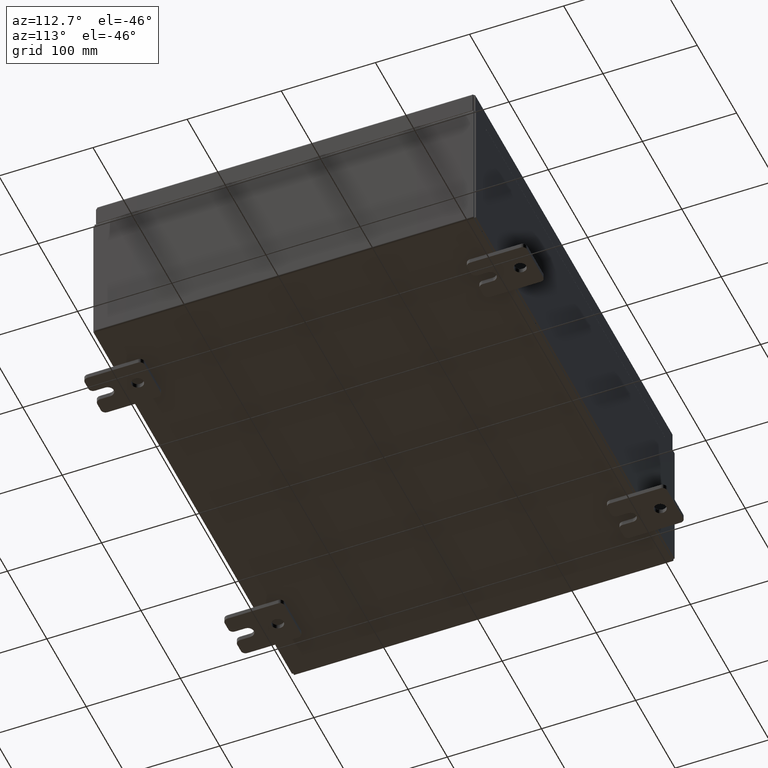
[diagram: clean part render]
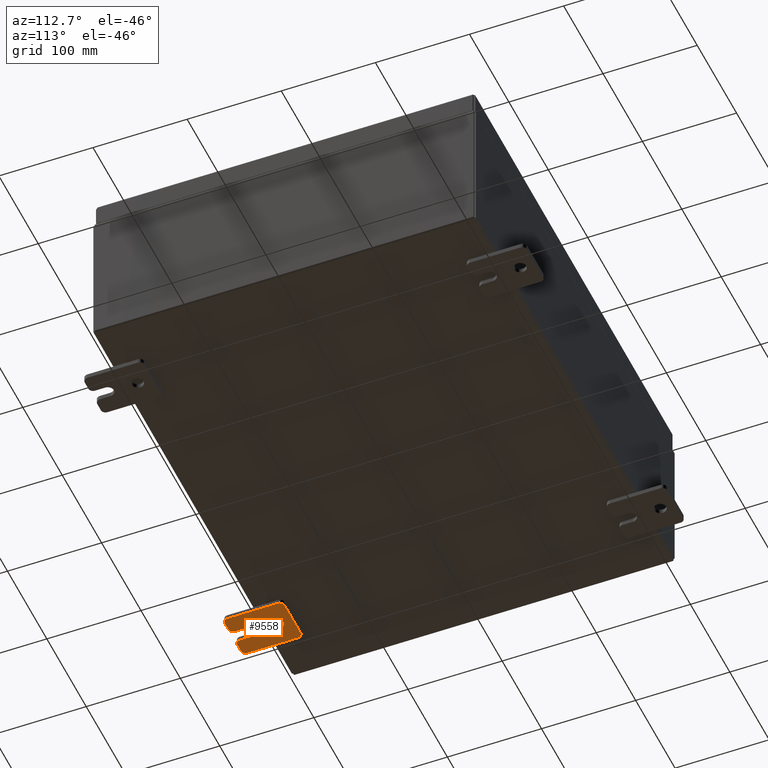
[diagram: same view with one face highlighted and labeled with its STEP entity id]
A machine part, auxiliary view. The second image highlights one B-rep face of the part: STEP entity #9558.
In plain terms, the highlighted planar face has unit normal (0, 0, 1).
Its self-contained STEP definition (entity closure, byte-faithful):
#383 = CARTESIAN_POINT ( 'NONE',  ( -0.1879999999999997800, 1.249999999999994200, -1.000000000000010400 ) ) ;
#495 = LINE ( 'NONE', #383, #38833 ) ;
#1017 = ORIENTED_EDGE ( 'NONE', *, *, #56891, .F. ) ;
#1212 = VECTOR ( 'NONE', #31915, 39.37007874015748100 ) ;
#1824 = VERTEX_POINT ( 'NONE', #32795 ) ;
#3380 = CARTESIAN_POINT ( 'NONE',  ( -0.1879999999999997800, -1.060000000000004100, -0.8100000000000050500 ) ) ;
#4101 = AXIS2_PLACEMENT_3D ( 'NONE', #3380, #37017, #8249 ) ;
#4194 = ORIENTED_EDGE ( 'NONE', *, *, #25151, .T. ) ;
#4737 = DIRECTION ( 'NONE',  ( 0.0000000000000000000, 0.0000000000000000000, -1.000000000000000000 ) ) ;
#5092 = AXIS2_PLACEMENT_3D ( 'NONE', #50521, #21791, #55314 ) ;
#6177 = VECTOR ( 'NONE', #54468, 39.37007874015748100 ) ;
#6838 = EDGE_CURVE ( 'NONE', #24683, #30950, #33500, .T. ) ;
#6852 = ORIENTED_EDGE ( 'NONE', *, *, #52141, .T. ) ;
#6981 = CARTESIAN_POINT ( 'NONE',  ( -0.1880000000000001900, -0.6249999999999992200, 0.2500000000000005000 ) ) ;
#7111 = VERTEX_POINT ( 'NONE', #16588 ) ;
#7534 = AXIS2_PLACEMENT_3D ( 'NONE', #14972, #48552, #19818 ) ;
#7574 = VERTEX_POINT ( 'NONE', #14259 ) ;
#7723 = LINE ( 'NONE', #40044, #6177 ) ;
#8228 = DIRECTION ( 'NONE',  ( 0.0000000000000000000, -1.639108796198553600E-015, -1.000000000000000000 ) ) ;
#8249 = DIRECTION ( 'NONE',  ( 0.0000000000000000000, 0.0000000000000000000, -1.000000000000000000 ) ) ;
#8513 = DIRECTION ( 'NONE',  ( 1.000000000000000000, -0.0000000000000000000, -5.163192708025532000E-017 ) ) ;
#9558 = ADVANCED_FACE ( 'NONE', ( #15307, #28106 ), #11556, .F. ) ;
#9586 = LINE ( 'NONE', #13995, #59104 ) ;
#9642 = DIRECTION ( 'NONE',  ( -1.000000000000000000, -0.0000000000000000000, 0.0000000000000000000 ) ) ;
#11164 = LINE ( 'NONE', #33448, #23952 ) ;
#11556 = PLANE ( 'NONE',  #57475 ) ;
#13289 = CARTESIAN_POINT ( 'NONE',  ( -0.1879999999999997800, -1.250000000000005300, -0.8100000000000047200 ) ) ;
#13995 = CARTESIAN_POINT ( 'NONE',  ( -0.1879999999999997800, 1.249999999999997600, 0.9999999999999951200 ) ) ;
#14040 = LINE ( 'NONE', #36703, #1212 ) ;
#14259 = CARTESIAN_POINT ( 'NONE',  ( -0.1880000000000010000, 0.6249999999999992200, -0.2499999999999999200 ) ) ;
#14972 = CARTESIAN_POINT ( 'NONE',  ( -0.1879999999999997800, -1.060000000000001600, 0.8099999999999978300 ) ) ;
#15307 = FACE_BOUND ( 'NONE', #42639, .T. ) ;
#15894 = EDGE_CURVE ( 'NONE', #53098, #7574, #18994, .T. ) ;
#15992 = DIRECTION ( 'NONE',  ( 1.000000000000000000, -0.0000000000000000000, -5.163192708025532000E-017 ) ) ;
#16304 = DIRECTION ( 'NONE',  ( -1.000000000000000000, -0.0000000000000000000, 0.0000000000000000000 ) ) ;
#16436 = CIRCLE ( 'NONE', #57487, 0.2499999999999999200 ) ;
#16577 = ORIENTED_EDGE ( 'NONE', *, *, #15894, .T. ) ;
#16588 = CARTESIAN_POINT ( 'NONE',  ( -0.1880000000000004700, -1.060000000000003400, -0.2499999999999994400 ) ) ;
#16824 = ORIENTED_EDGE ( 'NONE', *, *, #24410, .F. ) ;
#16864 = DIRECTION ( 'NONE',  ( -1.000000000000000000, 6.523827964459549700E-016, 5.163192708025532000E-017 ) ) ;
#17518 = CIRCLE ( 'NONE', #5092, 0.1900000000000011400 ) ;
#18864 = DIRECTION ( 'NONE',  ( 0.0000000000000000000, -1.000000000000000000, 1.639108796198558100E-015 ) ) ;
#18994 = CIRCLE ( 'NONE', #56493, 0.2499999999999999200 ) ;
#19818 = DIRECTION ( 'NONE',  ( 0.0000000000000000000, 7.189073667537492800E-016, -1.000000000000000000 ) ) ;
#21283 = CARTESIAN_POINT ( 'NONE',  ( -0.1880000000000004700, -1.060000000000002100, 0.2500000000000005000 ) ) ;
#21667 = ORIENTED_EDGE ( 'NONE', *, *, #52623, .F. ) ;
#21791 = DIRECTION ( 'NONE',  ( -1.000000000000000000, -0.0000000000000000000, 0.0000000000000000000 ) ) ;
#23411 = CARTESIAN_POINT ( 'NONE',  ( -0.1879999999999997800, -1.250000000000002400, 0.8099999999999980500 ) ) ;
#23952 = VECTOR ( 'NONE', #47727, 39.37007874015748100 ) ;
#23960 = EDGE_CURVE ( 'NONE', #24683, #38802, #495, .T. ) ;
#24410 = EDGE_CURVE ( 'NONE', #27537, #7111, #14040, .T. ) ;
#24683 = VERTEX_POINT ( 'NONE', #58214 ) ;
#24734 = AXIS2_PLACEMENT_3D ( 'NONE', #62202, #33544, #4737 ) ;
#25151 = EDGE_CURVE ( 'NONE', #7574, #53098, #48538, .T. ) ;
#25371 = VECTOR ( 'NONE', #42098, 39.37007874015748100 ) ;
#26059 = DIRECTION ( 'NONE',  ( -0.0000000000000000000, 0.0000000000000000000, -1.000000000000000000 ) ) ;
#27251 = ORIENTED_EDGE ( 'NONE', *, *, #23960, .F. ) ;
#27501 = ORIENTED_EDGE ( 'NONE', *, *, #57254, .F. ) ;
#27537 = VERTEX_POINT ( 'NONE', #44746 ) ;
#27921 = VERTEX_POINT ( 'NONE', #21283 ) ;
#28106 = FACE_OUTER_BOUND ( 'NONE', #37539, .T. ) ;
#28518 = VERTEX_POINT ( 'NONE', #34432 ) ;
#30950 = VERTEX_POINT ( 'NONE', #46992 ) ;
#31915 = DIRECTION ( 'NONE',  ( -6.556435184794182400E-016, -1.000000000000000000, -1.639108796198545600E-016 ) ) ;
#32493 = VECTOR ( 'NONE', #8228, 39.37007874015748100 ) ;
#32795 = CARTESIAN_POINT ( 'NONE',  ( -0.1879999999999997800, -1.250000000000003100, 0.4400000000000020000 ) ) ;
#33448 = CARTESIAN_POINT ( 'NONE',  ( -0.1879999999999997800, -1.250000000000005600, -1.000000000000006200 ) ) ;
#33500 = CIRCLE ( 'NONE', #56574, 0.1900000000000011100 ) ;
#33544 = DIRECTION ( 'NONE',  ( -1.000000000000000000, -0.0000000000000000000, 0.0000000000000000000 ) ) ;
#34002 = EDGE_CURVE ( 'NONE', #60967, #7111, #48411, .T. ) ;
#34272 = VERTEX_POINT ( 'NONE', #13289 ) ;
#34432 = CARTESIAN_POINT ( 'NONE',  ( -0.1879999999999997800, -1.060000000000001200, 0.9999999999999988900 ) ) ;
#36089 = ORIENTED_EDGE ( 'NONE', *, *, #6838, .T. ) ;
#36703 = CARTESIAN_POINT ( 'NONE',  ( -0.1880000000000001900, -0.6249999999999992200, -0.2499999999999993900 ) ) ;
#36996 = CARTESIAN_POINT ( 'NONE',  ( -0.1879999999999997800, -1.250000000000002200, 0.9999999999999992200 ) ) ;
#37017 = DIRECTION ( 'NONE',  ( -1.000000000000000000, -0.0000000000000000000, 0.0000000000000000000 ) ) ;
#37261 = CARTESIAN_POINT ( 'NONE',  ( -0.1880000000000010000, 0.6249999999999992200, -7.703811342100550500E-020 ) ) ;
#37453 = ORIENTED_EDGE ( 'NONE', *, *, #49973, .T. ) ;
#37539 = EDGE_LOOP ( 'NONE', ( #45149, #6852, #61114, #56536, #27251, #36089, #1017, #37453, #21667, #40310, #16824, #27501, #54045, #55567 ) ) ;
#37553 = VERTEX_POINT ( 'NONE', #56523 ) ;
#37596 = CIRCLE ( 'NONE', #53475, 0.1900000000000011100 ) ;
#38063 = EDGE_CURVE ( 'NONE', #27921, #45491, #7723, .T. ) ;
#38152 = EDGE_CURVE ( 'NONE', #27921, #1824, #17518, .T. ) ;
#38429 = CARTESIAN_POINT ( 'NONE',  ( -0.1879999999999997800, 1.059999999999993600, -0.8100000000000089400 ) ) ;
#38802 = VERTEX_POINT ( 'NONE', #40311 ) ;
#38822 = DIRECTION ( 'NONE',  ( 0.0000000000000000000, 1.639108796198553600E-015, 1.000000000000000000 ) ) ;
#38833 = VECTOR ( 'NONE', #38822, 39.37007874015748100 ) ;
#40044 = CARTESIAN_POINT ( 'NONE',  ( -0.1880000000000005800, -1.250000000000003800, 0.2500000000000005000 ) ) ;
#40310 = ORIENTED_EDGE ( 'NONE', *, *, #34002, .T. ) ;
#40311 = CARTESIAN_POINT ( 'NONE',  ( -0.1879999999999997800, 1.249999999999997300, 0.8099999999999935000 ) ) ;
#41475 = VERTEX_POINT ( 'NONE', #62138 ) ;
#42098 = DIRECTION ( 'NONE',  ( 0.0000000000000000000, -1.639108796198553600E-015, -1.000000000000000000 ) ) ;
#42147 = DIRECTION ( 'NONE',  ( 0.0000000000000000000, 0.0000000000000000000, -1.000000000000000000 ) ) ;
#42609 = AXIS2_PLACEMENT_3D ( 'NONE', #37261, #8513, #42147 ) ;
#42639 = EDGE_LOOP ( 'NONE', ( #4194, #16577 ) ) ;
#43268 = DIRECTION ( 'NONE',  ( 0.0000000000000000000, 0.0000000000000000000, -1.000000000000000000 ) ) ;
#44746 = CARTESIAN_POINT ( 'NONE',  ( -0.1880000000000001900, -0.6249999999999992200, -0.2499999999999998600 ) ) ;
#44766 = CARTESIAN_POINT ( 'NONE',  ( -0.1880000000000010000, 0.6249999999999992200, -7.703811342100550500E-020 ) ) ;
#45099 = CARTESIAN_POINT ( 'NONE',  ( -0.1879999999999997800, 1.059999999999996300, 0.8099999999999938400 ) ) ;
#45149 = ORIENTED_EDGE ( 'NONE', *, *, #45655, .F. ) ;
#45199 = CARTESIAN_POINT ( 'NONE',  ( -0.1879999999999997800, 0.0000000000000000000, 0.0000000000000000000 ) ) ;
#45491 = VERTEX_POINT ( 'NONE', #6981 ) ;
#45647 = CARTESIAN_POINT ( 'NONE',  ( -0.1880000000000001900, -0.6249999999999992200, 6.829619984160658000E-017 ) ) ;
#45655 = EDGE_CURVE ( 'NONE', #51961, #1824, #50888, .T. ) ;
#46061 = CIRCLE ( 'NONE', #7534, 0.1900000000000011100 ) ;
#46591 = CARTESIAN_POINT ( 'NONE',  ( -0.1879999999999997800, -1.250000000000004700, -0.4400000000000002200 ) ) ;
#46992 = CARTESIAN_POINT ( 'NONE',  ( -0.1879999999999997800, 1.059999999999993400, -1.000000000000010000 ) ) ;
#47727 = DIRECTION ( 'NONE',  ( 0.0000000000000000000, 1.000000000000000000, -1.639108796198558100E-015 ) ) ;
#48411 = CIRCLE ( 'NONE', #24734, 0.1900000000000011100 ) ;
#48538 = CIRCLE ( 'NONE', #42609, 0.2499999999999999200 ) ;
#48552 = DIRECTION ( 'NONE',  ( -1.000000000000000000, -0.0000000000000000000, 0.0000000000000000000 ) ) ;
#49554 = DIRECTION ( 'NONE',  ( 0.0000000000000000000, 0.0000000000000000000, -1.000000000000000000 ) ) ;
#49861 = DIRECTION ( 'NONE',  ( 0.0000000000000000000, 0.0000000000000000000, -1.000000000000000000 ) ) ;
#49973 = EDGE_CURVE ( 'NONE', #37553, #34272, #60330, .T. ) ;
#50426 = DIRECTION ( 'NONE',  ( -6.829619984160660000E-016, -1.000000000000000000, 0.0000000000000000000 ) ) ;
#50521 = CARTESIAN_POINT ( 'NONE',  ( -0.1879999999999997800, -1.060000000000002100, 0.4400000000000016700 ) ) ;
#50888 = LINE ( 'NONE', #61086, #25371 ) ;
#51961 = VERTEX_POINT ( 'NONE', #23411 ) ;
#52141 = EDGE_CURVE ( 'NONE', #51961, #28518, #46061, .T. ) ;
#52623 = EDGE_CURVE ( 'NONE', #60967, #34272, #57915, .T. ) ;
#53098 = VERTEX_POINT ( 'NONE', #53976 ) ;
#53475 = AXIS2_PLACEMENT_3D ( 'NONE', #45099, #16304, #49861 ) ;
#53976 = CARTESIAN_POINT ( 'NONE',  ( -0.1880000000000010000, 0.6249999999999992200, 0.2499999999999999200 ) ) ;
#54045 = ORIENTED_EDGE ( 'NONE', *, *, #38063, .F. ) ;
#54468 = DIRECTION ( 'NONE',  ( 6.556435184794182400E-016, 1.000000000000000000, 0.0000000000000000000 ) ) ;
#54764 = DIRECTION ( 'NONE',  ( 1.000000000000000000, 0.0000000000000000000, -0.0000000000000000000 ) ) ;
#55314 = DIRECTION ( 'NONE',  ( 0.0000000000000000000, 0.0000000000000000000, -1.000000000000000000 ) ) ;
#55567 = ORIENTED_EDGE ( 'NONE', *, *, #38152, .T. ) ;
#56299 = EDGE_CURVE ( 'NONE', #41475, #38802, #37596, .T. ) ;
#56493 = AXIS2_PLACEMENT_3D ( 'NONE', #44766, #15992, #49554 ) ;
#56523 = CARTESIAN_POINT ( 'NONE',  ( -0.1879999999999997800, -1.060000000000004500, -1.000000000000006400 ) ) ;
#56536 = ORIENTED_EDGE ( 'NONE', *, *, #56299, .T. ) ;
#56574 = AXIS2_PLACEMENT_3D ( 'NONE', #38429, #9642, #43268 ) ;
#56891 = EDGE_CURVE ( 'NONE', #37553, #30950, #11164, .T. ) ;
#57254 = EDGE_CURVE ( 'NONE', #45491, #27537, #16436, .T. ) ;
#57475 = AXIS2_PLACEMENT_3D ( 'NONE', #45199, #54764, #26059 ) ;
#57487 = AXIS2_PLACEMENT_3D ( 'NONE', #45647, #16864, #50426 ) ;
#57915 = LINE ( 'NONE', #36996, #32493 ) ;
#58021 = EDGE_CURVE ( 'NONE', #41475, #28518, #9586, .T. ) ;
#58214 = CARTESIAN_POINT ( 'NONE',  ( -0.1879999999999997800, 1.249999999999994700, -0.8100000000000092700 ) ) ;
#59104 = VECTOR ( 'NONE', #18864, 39.37007874015748100 ) ;
#60330 = CIRCLE ( 'NONE', #4101, 0.1900000000000011100 ) ;
#60967 = VERTEX_POINT ( 'NONE', #46591 ) ;
#61086 = CARTESIAN_POINT ( 'NONE',  ( -0.1879999999999997800, -1.250000000000002200, 0.9999999999999992200 ) ) ;
#61114 = ORIENTED_EDGE ( 'NONE', *, *, #58021, .F. ) ;
#62138 = CARTESIAN_POINT ( 'NONE',  ( -0.1879999999999997800, 1.059999999999996500, 0.9999999999999953400 ) ) ;
#62202 = CARTESIAN_POINT ( 'NONE',  ( -0.1879999999999997800, -1.060000000000003400, -0.4400000000000005000 ) ) ;